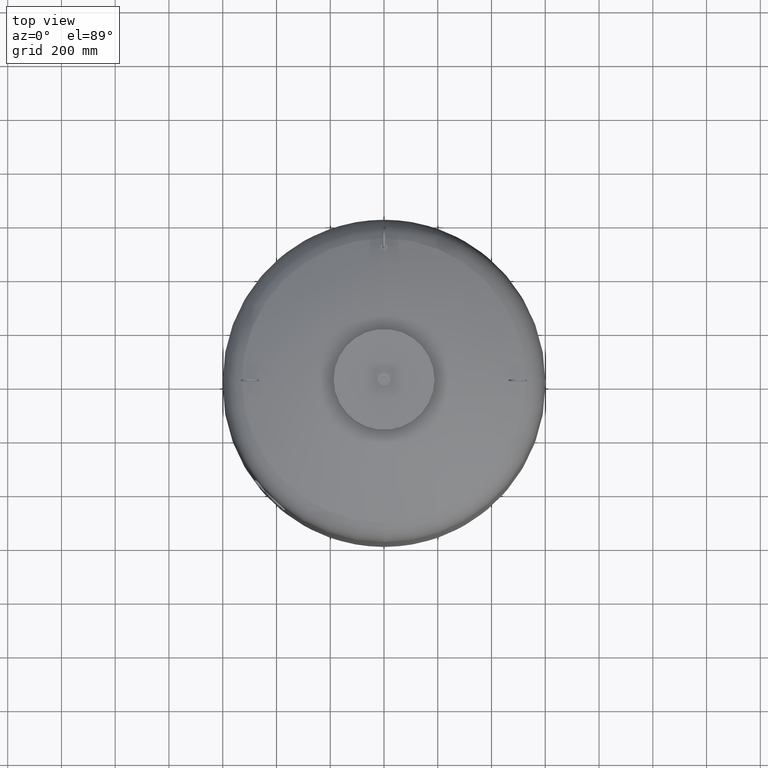
[diagram: clean part render]
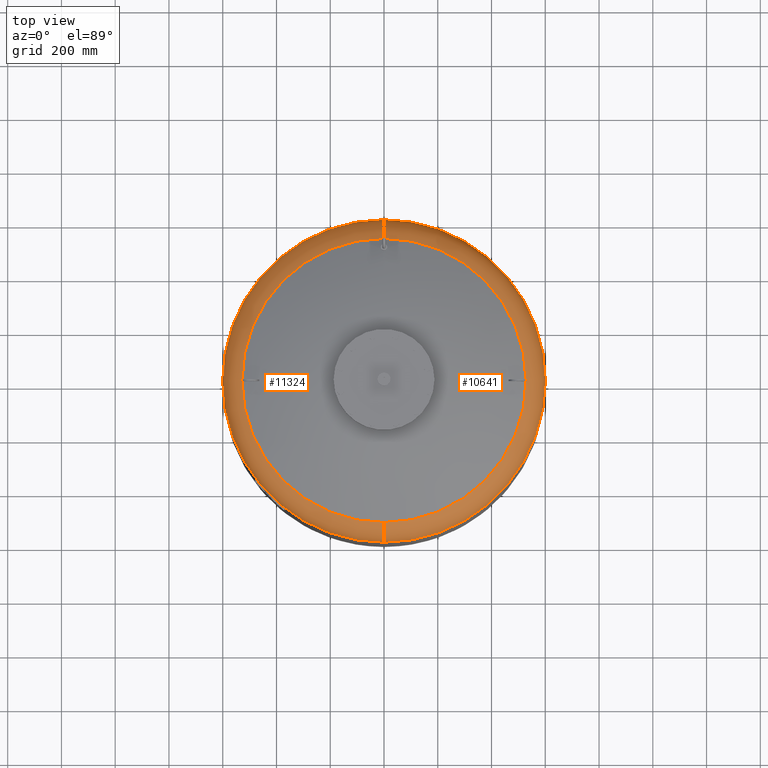
[diagram: same view with one multi-face feature highlighted, each face labeled with its STEP entity id]
A machine part, top view. The highlighted faces form ONE feature: a constant-radius fillet chain: 2 tangent blend faces with common blend radius 127 mm. The faces share edges in the B-rep.
Their STEP definitions:
[1] entity #10641 (Torus):
#10546=CARTESIAN_POINT('',(600.0,-4.336858E-014,1703.912457433727700));
#10547=VERTEX_POINT('',#10546);
#10571=CARTESIAN_POINT('',(1.156183E-013,600.0,1703.912457433727700));
#10572=VERTEX_POINT('',#10571);
#10580=CARTESIAN_POINT('',(6.604942E-015,-4.336858E-014,1703.912457433727700));
#10581=DIRECTION('',(0.0,0.0,-1.0));
#10582=DIRECTION('',(1.0,0.0,0.0));
#10583=AXIS2_PLACEMENT_3D('',#10580,#10581,#10582);
#10584=CIRCLE('',#10583,600.0);
#10585=EDGE_CURVE('',#10572,#10547,#10584,.T.);
#10590=CARTESIAN_POINT('',(4.214189E-014,-4.336858E-014,1703.912457433727700));
#10591=DIRECTION('',(2.797667E-017,-1.836970E-016,-1.0));
#10592=DIRECTION('',(0.0,-1.0,0.0));
#10593=AXIS2_PLACEMENT_3D('',#10590,#10591,#10592);
#10594=TOROIDAL_SURFACE('',#10593,472.999999999999890,127.000000000000010);
#10595=CARTESIAN_POINT('',(4.214189E-014,-600.0,1703.912457433727700));
#10596=VERTEX_POINT('',#10595);
#10597=CARTESIAN_POINT('',(3.894773E-014,-528.621296296296240,1818.084570483805000));
#10598=VERTEX_POINT('',#10597);
#10599=CARTESIAN_POINT('',(4.214189E-014,-472.999999999999940,1703.912457433727700));
#10600=DIRECTION('',(-1.0,0.0,0.0));
#10601=DIRECTION('',(0.0,-1.0,0.0));
#10602=AXIS2_PLACEMENT_3D('',#10599,#10600,#10601);
#10603=CIRCLE('',#10602,127.000000000000010);
#10604=EDGE_CURVE('',#10596,#10598,#10603,.T.);
#10605=ORIENTED_EDGE('',*,*,#10604,.F.);
#10606=CARTESIAN_POINT('',(6.604942E-015,-4.336858E-014,1703.912457433727700));
#10607=DIRECTION('',(0.0,0.0,-1.0));
#10608=DIRECTION('',(1.0,0.0,0.0));
#10609=AXIS2_PLACEMENT_3D('',#10606,#10607,#10608);
#10610=CIRCLE('',#10609,600.0);
#10611=EDGE_CURVE('',#10547,#10596,#10610,.T.);
#10612=ORIENTED_EDGE('',*,*,#10611,.F.);
#10613=ORIENTED_EDGE('',*,*,#10585,.F.);
#10614=CARTESIAN_POINT('',(1.036830E-013,528.621296296296240,1818.084570483805000));
#10615=VERTEX_POINT('',#10614);
#10616=CARTESIAN_POINT('',(1.000658E-013,472.999999999999830,1703.912457433727700));
#10617=DIRECTION('',(1.0,0.0,0.0));
#10618=DIRECTION('',(0.0,1.0,0.0));
#10619=AXIS2_PLACEMENT_3D('',#10616,#10617,#10618);
#10620=CIRCLE('',#10619,127.000000000000010);
#10621=EDGE_CURVE('',#10572,#10615,#10620,.T.);
#10622=ORIENTED_EDGE('',*,*,#10621,.T.);
#10623=CARTESIAN_POINT('',(528.621296296296240,-2.239550E-014,1818.084570483805000));
#10624=VERTEX_POINT('',#10623);
#10625=CARTESIAN_POINT('',(3.410787E-015,-2.239550E-014,1818.084570483805000));
#10626=DIRECTION('',(0.0,0.0,-1.0));
#10627=DIRECTION('',(1.0,0.0,0.0));
#10628=AXIS2_PLACEMENT_3D('',#10625,#10626,#10627);
#10629=CIRCLE('',#10628,528.621296296296240);
#10630=EDGE_CURVE('',#10615,#10624,#10629,.T.);
#10631=ORIENTED_EDGE('',*,*,#10630,.T.);
#10632=CARTESIAN_POINT('',(3.410787E-015,-2.239550E-014,1818.084570483805000));
#10633=DIRECTION('',(0.0,0.0,-1.0));
#10634=DIRECTION('',(1.0,0.0,0.0));
#10635=AXIS2_PLACEMENT_3D('',#10632,#10633,#10634);
#10636=CIRCLE('',#10635,528.621296296296240);
#10637=EDGE_CURVE('',#10624,#10598,#10636,.T.);
#10638=ORIENTED_EDGE('',*,*,#10637,.T.);
#10639=EDGE_LOOP('',(#10605,#10612,#10613,#10622,#10631,#10638));
#10640=FACE_OUTER_BOUND('',#10639,.T.);
#10641=ADVANCED_FACE('',(#10640),#10594,.T.);
[2] entity #11324 (Torus):
#10563=CARTESIAN_POINT('',(-599.999999999999890,3.010780E-014,1703.912457433727700));
#10564=VERTEX_POINT('',#10563);
#10571=CARTESIAN_POINT('',(1.156183E-013,600.0,1703.912457433727700));
#10572=VERTEX_POINT('',#10571);
#10573=CARTESIAN_POINT('',(6.604942E-015,-4.336858E-014,1703.912457433727700));
#10574=DIRECTION('',(0.0,0.0,-1.0));
#10575=DIRECTION('',(1.0,0.0,0.0));
#10576=AXIS2_PLACEMENT_3D('',#10573,#10574,#10575);
#10577=CIRCLE('',#10576,600.0);
#10578=EDGE_CURVE('',#10564,#10572,#10577,.T.);
#10595=CARTESIAN_POINT('',(4.214189E-014,-600.0,1703.912457433727700));
#10596=VERTEX_POINT('',#10595);
#10597=CARTESIAN_POINT('',(3.894773E-014,-528.621296296296240,1818.084570483805000));
#10598=VERTEX_POINT('',#10597);
#10599=CARTESIAN_POINT('',(4.214189E-014,-472.999999999999940,1703.912457433727700));
#10600=DIRECTION('',(-1.0,0.0,0.0));
#10601=DIRECTION('',(0.0,-1.0,0.0));
#10602=AXIS2_PLACEMENT_3D('',#10599,#10600,#10601);
#10603=CIRCLE('',#10602,127.000000000000010);
#10604=EDGE_CURVE('',#10596,#10598,#10603,.T.);
#10614=CARTESIAN_POINT('',(1.036830E-013,528.621296296296240,1818.084570483805000));
#10615=VERTEX_POINT('',#10614);
#10616=CARTESIAN_POINT('',(1.000658E-013,472.999999999999830,1703.912457433727700));
#10617=DIRECTION('',(1.0,0.0,0.0));
#10618=DIRECTION('',(0.0,1.0,0.0));
#10619=AXIS2_PLACEMENT_3D('',#10616,#10617,#10618);
#10620=CIRCLE('',#10619,127.000000000000010);
#10621=EDGE_CURVE('',#10572,#10615,#10620,.T.);
#11296=CARTESIAN_POINT('',(3.410787E-015,-2.239550E-014,1818.084570483805000));
#11297=DIRECTION('',(0.0,0.0,-1.0));
#11298=DIRECTION('',(1.0,0.0,0.0));
#11299=AXIS2_PLACEMENT_3D('',#11296,#11297,#11298);
#11300=CIRCLE('',#11299,528.621296296296240);
#11301=EDGE_CURVE('',#10598,#10615,#11300,.T.);
#11306=CARTESIAN_POINT('',(4.214189E-014,-4.336858E-014,1703.912457433727700));
#11307=DIRECTION('',(2.797667E-017,-1.836970E-016,-1.0));
#11308=DIRECTION('',(0.0,-1.0,0.0));
#11309=AXIS2_PLACEMENT_3D('',#11306,#11307,#11308);
#11310=TOROIDAL_SURFACE('',#11309,472.999999999999890,127.000000000000010);
#11311=ORIENTED_EDGE('',*,*,#10604,.T.);
#11312=ORIENTED_EDGE('',*,*,#11301,.T.);
#11313=ORIENTED_EDGE('',*,*,#10621,.F.);
#11314=ORIENTED_EDGE('',*,*,#10578,.F.);
#11315=CARTESIAN_POINT('',(6.604942E-015,-4.336858E-014,1703.912457433727700));
#11316=DIRECTION('',(0.0,0.0,-1.0));
#11317=DIRECTION('',(1.0,0.0,0.0));
#11318=AXIS2_PLACEMENT_3D('',#11315,#11316,#11317);
#11319=CIRCLE('',#11318,600.0);
#11320=EDGE_CURVE('',#10596,#10564,#11319,.T.);
#11321=ORIENTED_EDGE('',*,*,#11320,.F.);
#11322=EDGE_LOOP('',(#11311,#11312,#11313,#11314,#11321));
#11323=FACE_OUTER_BOUND('',#11322,.T.);
#11324=ADVANCED_FACE('',(#11323),#11310,.T.);